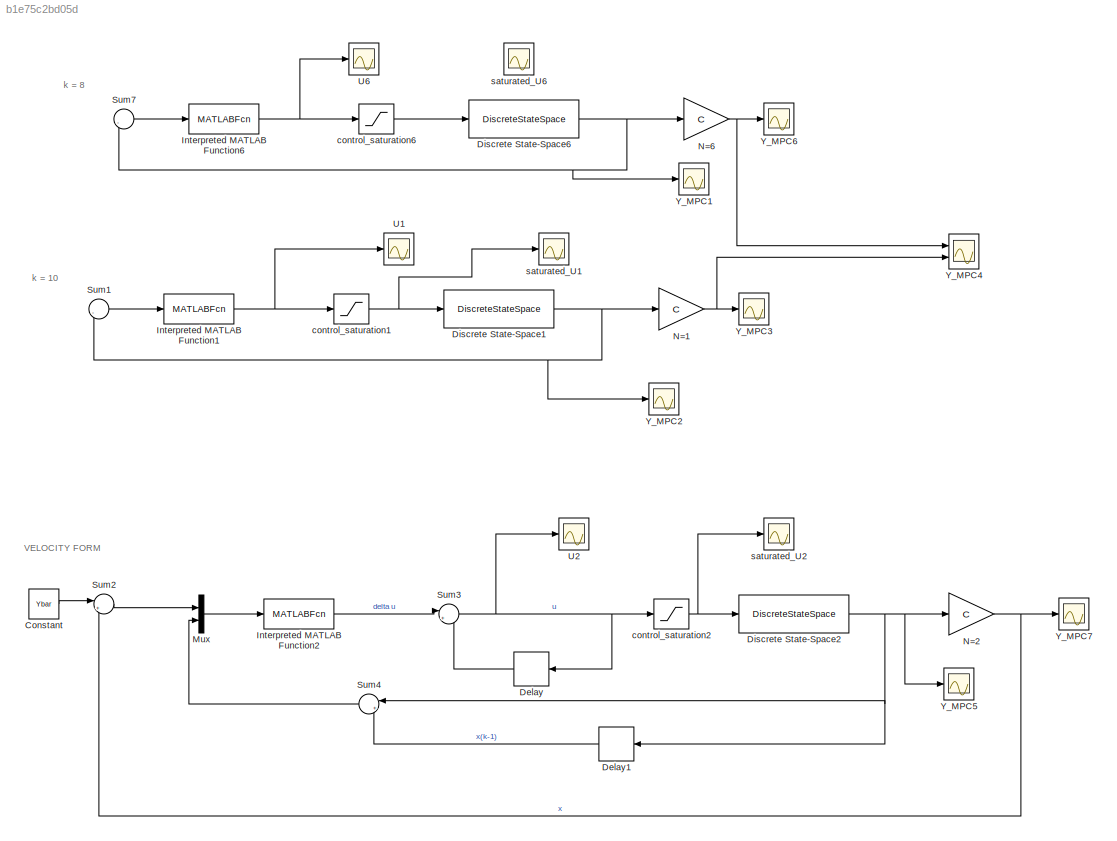
MODEL slx_b1e75c2bd05d
KIND model
CONFIG AbsTol = auto
CONFIG EnableMultiTasking = off
CONFIG FixedStep = auto
CONFIG MaxStep = auto
CONFIG MinStep = auto
CONFIG RelTol = 1e-3
CONFIG SampleTimeConstraint = Unconstrained
CONFIG SolverName = VariableStepAuto
CONFIG StartTime = 0.0
CONFIG StopTime = 50
BLOCK [Constant] Constant
  Value = Ybar
BLOCK [Delay] Delay
  DelayLength = 1
  InputPortMap = u0
  Ports = [1, 1]
BLOCK [Delay] Delay1
  DelayLength = 1
  InputPortMap = u0
  Ports = [1, 1]
BLOCK [DiscreteStateSpace] Discrete State-Space1
  A = A
  B = B
  C = C_states
  D = D_states
  InitialCondition = x0
  SampleTime = Ts
BLOCK [DiscreteStateSpace] Discrete State-Space2
  A = A1
  B = B1
  C = C_states
  D = D_states
  InitialCondition = x0
  SampleTime = Ts
BLOCK [DiscreteStateSpace] Discrete State-Space6
  A = A1
  B = B
  C = C_states
  D = D_states
  InitialCondition = x0
  SampleTime = Ts
BLOCK [MATLABFcn] Interpreted MATLAB Function1
  MATLABFcn = mympc_constraints(A,B,Q,R,S,N3,umin,umax,xmin,xmax,u,Ubar,Xbar,x0);
  OutputDimensions = 1
  Ports = [1, 1]
BLOCK [MATLABFcn] Interpreted MATLAB Function2
  MATLABFcn = mympc_velocityform(A,B,C,Qprimo,R,Sprimo,N,umin,umax,xmin,xmax,u,Ubar,Xbar,x0);
  Output1D = off
  OutputDimensions = 1
  Ports = [1, 1]
BLOCK [MATLABFcn] Interpreted MATLAB Function6
  MATLABFcn = mympc_constraints(A,B,Q,R,S,N3,umin,umax,xmin,xmax,u,Ubar,Xbar,x0);
  OutputDimensions = 1
  Ports = [1, 1]
BLOCK [Mux] Mux
  DisplayOption = bar
  Inputs = 2
  Ports = [2, 1]
BLOCK [Gain] N=1
  Gain = C
  Multiplication = Matrix(K*u) (u vector)
BLOCK [Gain] N=2
  Gain = C
  Multiplication = Matrix(K*u) (u vector)
BLOCK [Gain] N=6
  Gain = C
  Multiplication = Matrix(K*u) (u vector)
BLOCK [Sum] Sum1
  Inputs = |-+
  Ports = [2, 1]
BLOCK [Sum] Sum2
  Inputs = |+-
  Ports = [2, 1]
BLOCK [Sum] Sum3
  Inputs = |++
  Ports = [2, 1]
BLOCK [Sum] Sum4
  Inputs = |+-
  Ports = [2, 1]
BLOCK [Sum] Sum7
  Inputs = |-+
  Ports = [2, 1]
BLOCK [Scope] U1
  Floating = off
  NumInputPorts = 1
  Ports = [1]
  ScopeSpecificationString = Simulink.scopes.TimeScopeBlockCfg('CurrentConfiguration', extmgr.ConfigurationSet(extmgr.Configuration('Core','General UI',true),extmgr.Configuration('Core','Source UI',true),extmgr.Configuration('Sources','WiredSimulink',true,'DataLoggingSaveFormat','StructureWithTime','DataLoggingLimitDataPoints',true,'DataLoggingDecimation','1','DataLoggingDecimateData',true,'DataLoggingVariableName','ScopeData...<+1803ch>
BLOCK [Scope] U2
  Floating = off
  NumInputPorts = 1
  Ports = [1]
  ScopeSpecificationString = Simulink.scopes.TimeScopeBlockCfg('CurrentConfiguration', extmgr.ConfigurationSet(extmgr.Configuration('Core','General UI',true),extmgr.Configuration('Core','Source UI',true),extmgr.Configuration('Sources','WiredSimulink',true,'DataLoggingSaveFormat','StructureWithTime','DataLoggingLimitDataPoints',true,'DataLoggingDecimation','1','DataLoggingDecimateData',true,'DataLoggingVariableName','ScopeData...<+1763ch>
BLOCK [Scope] U6
  Floating = off
  NumInputPorts = 1
  Ports = [1]
  ScopeSpecificationString = Simulink.scopes.TimeScopeBlockCfg('CurrentConfiguration', extmgr.ConfigurationSet(extmgr.Configuration('Core','General UI',true),extmgr.Configuration('Core','Source UI',true),extmgr.Configuration('Sources','WiredSimulink',true,'DataLoggingSaveFormat','StructureWithTime','DataLoggingLimitDataPoints',true,'DataLoggingDecimation','1','DataLoggingDecimateData',true,'DataLoggingVariableName','ScopeData...<+1792ch>
BLOCK [Scope] Y_MPC1
  Floating = off
  NumInputPorts = 1
  Ports = [1]
  ScopeSpecificationString = Simulink.scopes.TimeScopeBlockCfg('CurrentConfiguration', extmgr.ConfigurationSet(extmgr.Configuration('Core','General UI',true),extmgr.Configuration('Core','Source UI',true),extmgr.Configuration('Sources','WiredSimulink',true,'DataLoggingVariableName','ScopeData2','DataLoggingSaveFormat','StructureWithTime','DataLoggingLimitDataPoints',true,'DataLoggingDecimation','1','DataLoggingDecimateData',tr...<+2362ch>
BLOCK [Scope] Y_MPC2
  Floating = off
  NumInputPorts = 1
  Ports = [1]
  ScopeSpecificationString = Simulink.scopes.TimeScopeBlockCfg('CurrentConfiguration', extmgr.ConfigurationSet(extmgr.Configuration('Core','General UI',true),extmgr.Configuration('Core','Source UI',true),extmgr.Configuration('Sources','WiredSimulink',true,'DataLoggingVariableName','ScopeData5','DataLoggingSaveFormat','StructureWithTime','DataLoggingLimitDataPoints',true,'DataLoggingDecimation','1','DataLoggingDecimateData',tr...<+2362ch>
BLOCK [Scope] Y_MPC3
  Floating = off
  NumInputPorts = 1
  Ports = [1]
  ScopeSpecificationString = Simulink.scopes.TimeScopeBlockCfg('CurrentConfiguration', extmgr.ConfigurationSet(extmgr.Configuration('Core','General UI',true),extmgr.Configuration('Core','Source UI',true),extmgr.Configuration('Sources','WiredSimulink',true,'DataLoggingVariableName','ScopeData6','DataLoggingSaveFormat','StructureWithTime','DataLoggingLimitDataPoints',true,'DataLoggingDecimation','1','DataLoggingDecimateData',tr...<+1776ch>
BLOCK [Scope] Y_MPC4
  Floating = off
  NumInputPorts = 2
  Ports = [2]
  ScopeSpecificationString = Simulink.scopes.TimeScopeBlockCfg('CurrentConfiguration', extmgr.ConfigurationSet(extmgr.Configuration('Core','General UI',true),extmgr.Configuration('Core','Source UI',true),extmgr.Configuration('Sources','WiredSimulink',true,'DataLoggingVariableName','ScopeData8','DataLoggingSaveFormat','StructureWithTime','DataLoggingLimitDataPoints',true,'DataLoggingDecimation','1','DataLoggingDecimateData',tr...<+1776ch>
BLOCK [Scope] Y_MPC5
  Floating = off
  NumInputPorts = 1
  Ports = [1]
  ScopeSpecificationString = Simulink.scopes.TimeScopeBlockCfg('CurrentConfiguration', extmgr.ConfigurationSet(extmgr.Configuration('Core','General UI',true),extmgr.Configuration('Core','Source UI',true),extmgr.Configuration('Sources','WiredSimulink',true,'DataLoggingVariableName','ScopeData10','DataLoggingSaveFormat','StructureWithTime','DataLoggingLimitDataPoints',true,'DataLoggingDecimation','1','DataLoggingDecimateData',t...<+2356ch>
BLOCK [Scope] Y_MPC6
  Floating = off
  NumInputPorts = 1
  Ports = [1]
  ScopeSpecificationString = Simulink.scopes.TimeScopeBlockCfg('CurrentConfiguration', extmgr.ConfigurationSet(extmgr.Configuration('Core','General UI',true),extmgr.Configuration('Core','Source UI',true),extmgr.Configuration('Sources','WiredSimulink',true,'DataLoggingVariableName','ScopeData3','DataLoggingSaveFormat','StructureWithTime','DataLoggingLimitDataPoints',true,'DataLoggingDecimation','1','DataLoggingDecimateData',tr...<+1776ch>
BLOCK [Scope] Y_MPC7
  Floating = off
  NumInputPorts = 1
  Ports = [1]
  ScopeSpecificationString = Simulink.scopes.TimeScopeBlockCfg('CurrentConfiguration', extmgr.ConfigurationSet(extmgr.Configuration('Core','General UI',true),extmgr.Configuration('Core','Source UI',true),extmgr.Configuration('Sources','WiredSimulink',true,'DataLoggingVariableName','ScopeData11','DataLoggingSaveFormat','StructureWithTime','DataLoggingLimitDataPoints',true,'DataLoggingDecimation','1','DataLoggingDecimateData',t...<+1871ch>
BLOCK [Saturate] control_saturation1
  LowerLimit = -inf
  UpperLimit = inf
BLOCK [Saturate] control_saturation2
  LowerLimit = -inf
  UpperLimit = inf
BLOCK [Saturate] control_saturation6
  LowerLimit = -inf
  UpperLimit = inf
BLOCK [Scope] saturated_U1
  Floating = off
  NumInputPorts = 1
  Ports = [1]
  ScopeSpecificationString = Simulink.scopes.TimeScopeBlockCfg('CurrentConfiguration', extmgr.ConfigurationSet(extmgr.Configuration('Core','General UI',true),extmgr.Configuration('Core','Source UI',true),extmgr.Configuration('Sources','WiredSimulink',true,'DataLoggingSaveFormat','StructureWithTime','DataLoggingLimitDataPoints',true,'DataLoggingDecimation','1','DataLoggingDecimateData',true,'DataLoggingVariableName','ScopeData...<+1813ch>
BLOCK [Scope] saturated_U2
  Floating = off
  NumInputPorts = 1
  Ports = [1]
  ScopeSpecificationString = Simulink.scopes.TimeScopeBlockCfg('CurrentConfiguration', extmgr.ConfigurationSet(extmgr.Configuration('Core','General UI',true),extmgr.Configuration('Core','Source UI',true),extmgr.Configuration('Sources','WiredSimulink',true,'DataLoggingSaveFormat','StructureWithTime','DataLoggingLimitDataPoints',true,'DataLoggingDecimation','1','DataLoggingDecimateData',true,'DataLoggingVariableName','ScopeData...<+1814ch>
BLOCK [Scope] saturated_U6
  Floating = off
  NumInputPorts = 1
  Ports = [1]
  ScopeSpecificationString = Simulink.scopes.TimeScopeBlockCfg('CurrentConfiguration', extmgr.ConfigurationSet(extmgr.Configuration('Core','General UI',true),extmgr.Configuration('Core','Source UI',true),extmgr.Configuration('Sources','WiredSimulink',true,'DataLoggingSaveFormat','StructureWithTime','DataLoggingLimitDataPoints',true,'DataLoggingDecimation','1','DataLoggingDecimateData',true),extmgr.Configuration('Visuals','Tim...<+1763ch>
ANNOTATION (root): VELOCITY FORM
ANNOTATION (root): k = 8
ANNOTATION (root): k = 10
LINE Constant:1 -> Sum2:1
LINE Delay1:1 -> Sum4:2
LINE Delay:1 -> Sum3:2
NET Discrete State-Space1:1 -> N=1:1, Sum1:2, Y_MPC2:1
NET Discrete State-Space2:1 -> Delay1:1, N=2:1, Sum4:1, Y_MPC5:1
NET Discrete State-Space6:1 -> N=6:1, Sum7:2, Y_MPC1:1
NET Interpreted MATLAB Function1:1 -> U1:1, control_saturation1:1
LINE Interpreted MATLAB Function2:1 -> Sum3:1
NET Interpreted MATLAB Function6:1 -> U6:1, control_saturation6:1
LINE Mux:1 -> Interpreted MATLAB Function2:1
NET N=1:1 -> Y_MPC3:1, Y_MPC4:2
NET N=2:1 -> Sum2:2, Y_MPC7:1
NET N=6:1 -> Y_MPC4:1, Y_MPC6:1
LINE Sum1:1 -> Interpreted MATLAB Function1:1
LINE Sum2:1 -> Mux:1
NET Sum3:1 -> Delay:1, U2:1, control_saturation2:1
LINE Sum4:1 -> Mux:2
LINE Sum7:1 -> Interpreted MATLAB Function6:1
NET control_saturation1:1 -> Discrete State-Space1:1, saturated_U1:1
NET control_saturation2:1 -> Discrete State-Space2:1, saturated_U2:1
LINE control_saturation6:1 -> Discrete State-Space6:1
note: NET lines group one-source signal fan-out (src -> all destinations, sorted); 1:1 wires keep LINE
